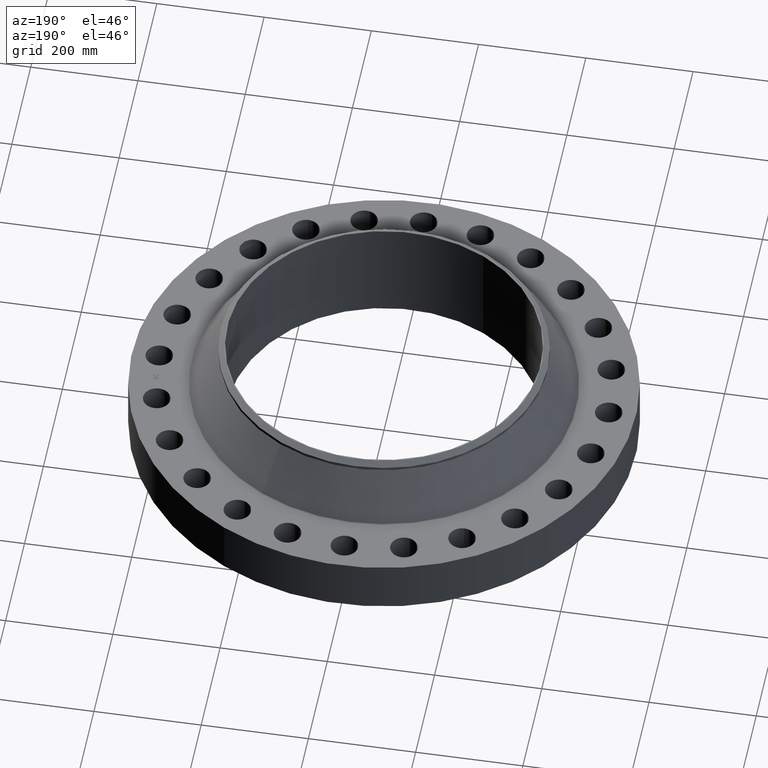
[diagram: clean part render]
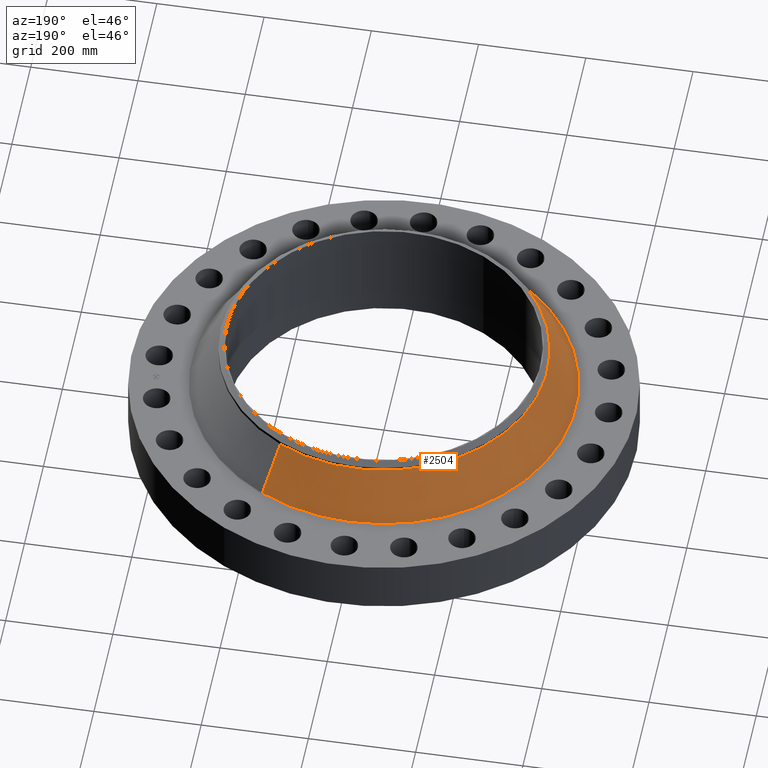
[diagram: same view with one face highlighted and labeled with its STEP entity id]
A machine part, auxiliary view. The second image highlights one B-rep face of the part: STEP entity #2504.
In plain terms, the highlighted conical surface has half-angle 31.701 deg.
Its self-contained STEP definition (entity closure, byte-faithful):
#2316=AXIS2_PLACEMENT_3D('Circle Axis2P3D',#2314,#2315,$) ;
#2477=AXIS2_PLACEMENT_3D('Cone Axis2P3D',#2474,#2475,#2476) ;
#2488=AXIS2_PLACEMENT_3D('Circle Axis2P3D',#2486,#2487,$) ;
#2311=CARTESIAN_POINT('Vertex',(-6.75502470531,-12.3649897829,4.05694164096)) ;
#2314=CARTESIAN_POINT('Axis2P3D Location',(0.,0.,4.05694164094)) ;
#2318=CARTESIAN_POINT('Vertex',(6.75502470532,12.3649897829,4.05694164094)) ;
#2474=CARTESIAN_POINT('Axis2P3D Location',(0.,0.,7.44053548147)) ;
#2479=CARTESIAN_POINT('Line Origine',(-6.25406558428,-11.4479902628,5.7487385612)) ;
#2483=CARTESIAN_POINT('Vertex',(-5.75310646325,-10.5309907427,7.44053548147)) ;
#2486=CARTESIAN_POINT('Axis2P3D Location',(0.,0.,7.44053548147)) ;
#2490=CARTESIAN_POINT('Vertex',(5.75310646326,10.5309907427,7.44053548146)) ;
#2493=CARTESIAN_POINT('Line Origine',(6.25406558428,11.4479902628,5.7487385612)) ;
#2315=DIRECTION('Axis2P3D Direction',(-0.,0.,-0.0393700787402)) ;
#2475=DIRECTION('Axis2P3D Direction',(0.,0.,-0.0393700787402)) ;
#2476=DIRECTION('Axis2P3D XDirection',(-0.0188750212049,-0.0345504945626,0.)) ;
#2480=DIRECTION('Vector Direction',(-0.00991856553729,-0.018155812433,-0.033496143548)) ;
#2487=DIRECTION('Axis2P3D Direction',(-0.,0.,-0.0393700787402)) ;
#2494=DIRECTION('Vector Direction',(0.00991856553729,0.018155812433,-0.033496143548)) ;
#2481=VECTOR('Line Direction',#2480,0.0393700787402) ;
#2495=VECTOR('Line Direction',#2494,0.0393700787402) ;
#2499=ORIENTED_EDGE('',*,*,#2320,.F.) ;
#2500=ORIENTED_EDGE('',*,*,#2485,.T.) ;
#2501=ORIENTED_EDGE('',*,*,#2492,.T.) ;
#2502=ORIENTED_EDGE('',*,*,#2497,.F.) ;
#2504=ADVANCED_FACE('PartBody',(#2503),#2478,.T.) ;
#2317=CIRCLE('generated circle',#2316,14.0898307691) ;
#2489=CIRCLE('generated circle',#2488,12.) ;
#2478=CONICAL_SURFACE('Cone',#2477,12.,0.553286620585) ;
#2320=EDGE_CURVE('',#2312,#2319,#2317,.T.) ;
#2485=EDGE_CURVE('',#2312,#2484,#2482,.F.) ;
#2492=EDGE_CURVE('',#2484,#2491,#2489,.T.) ;
#2497=EDGE_CURVE('',#2319,#2491,#2496,.F.) ;
#2498=EDGE_LOOP('',(#2499,#2500,#2501,#2502)) ;
#2503=FACE_OUTER_BOUND('',#2498,.T.) ;
#2482=LINE('Line',#2479,#2481) ;
#2496=LINE('Line',#2493,#2495) ;
#2312=VERTEX_POINT('',#2311) ;
#2319=VERTEX_POINT('',#2318) ;
#2484=VERTEX_POINT('',#2483) ;
#2491=VERTEX_POINT('',#2490) ;